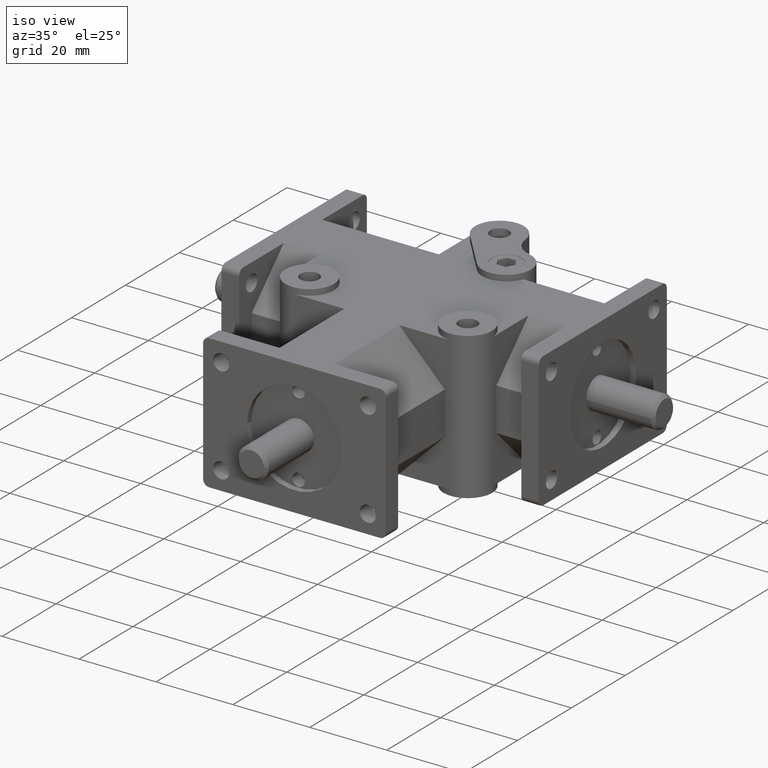
[diagram: clean part render]
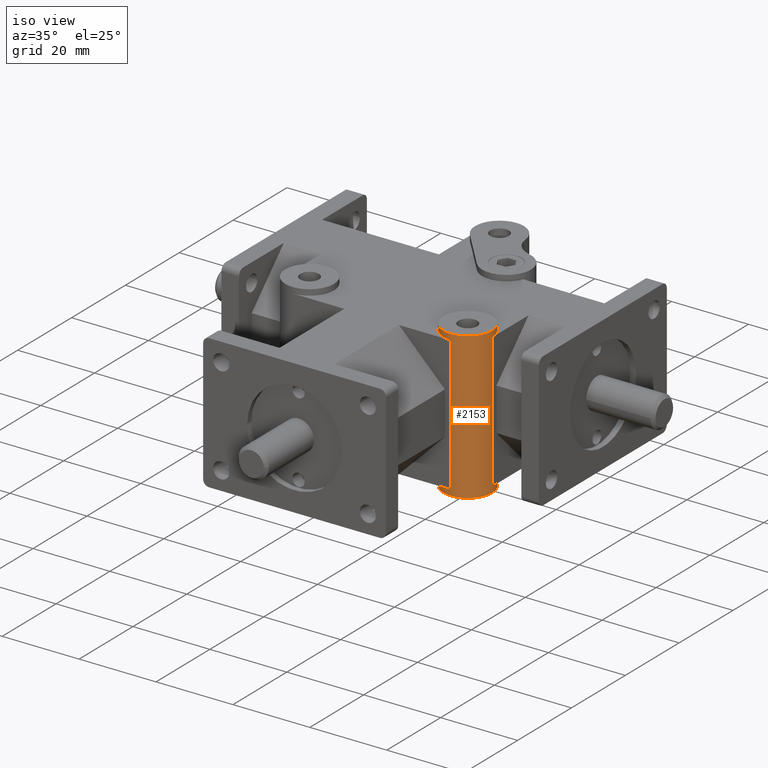
[diagram: same view with one face highlighted and labeled with its STEP entity id]
A machine part, iso view. The second image highlights one B-rep face of the part: STEP entity #2153.
In plain terms, the highlighted cylindrical surface (bore or boss wall) has radius 6.35 mm, axis along (0, 0, 1).
Its self-contained STEP definition (entity closure, byte-faithful):
#215=FACE_OUTER_BOUND('',#365,.T.);
#365=EDGE_LOOP('',(#1837,#1838,#1839,#1840,#1841,#1842,#1843,#1844,#1845,
#1846,#1847,#1848));
#482=CIRCLE('',#2315,6.35);
#483=CIRCLE('',#2316,6.35);
#490=CIRCLE('',#2325,6.35);
#491=CIRCLE('',#2326,6.35);
#509=CIRCLE('',#2380,6.35);
#510=CIRCLE('',#2381,6.35);
#683=LINE('',#3602,#878);
#684=LINE('',#3606,#879);
#685=LINE('',#3608,#880);
#686=LINE('',#3610,#881);
#878=VECTOR('',#2943,1.);
#879=VECTOR('',#2948,6.35);
#880=VECTOR('',#2949,6.35);
#881=VECTOR('',#2952,1.);
#1017=VERTEX_POINT('',#3363);
#1018=VERTEX_POINT('',#3365);
#1019=VERTEX_POINT('',#3367);
#1046=VERTEX_POINT('',#3436);
#1047=VERTEX_POINT('',#3438);
#1048=VERTEX_POINT('',#3440);
#1094=VERTEX_POINT('',#3604);
#1095=VERTEX_POINT('',#3607);
#1243=EDGE_CURVE('',#1017,#1018,#482,.T.);
#1244=EDGE_CURVE('',#1018,#1019,#483,.T.);
#1285=EDGE_CURVE('',#1046,#1047,#490,.T.);
#1286=EDGE_CURVE('',#1047,#1048,#491,.T.);
#1367=EDGE_CURVE('',#1048,#1017,#683,.T.);
#1368=EDGE_CURVE('',#1094,#1094,#509,.T.);
#1369=EDGE_CURVE('',#1094,#1018,#684,.T.);
#1370=EDGE_CURVE('',#1047,#1095,#685,.T.);
#1371=EDGE_CURVE('',#1095,#1095,#510,.T.);
#1372=EDGE_CURVE('',#1046,#1019,#686,.T.);
#1837=ORIENTED_EDGE('',*,*,#1368,.T.);
#1838=ORIENTED_EDGE('',*,*,#1369,.T.);
#1839=ORIENTED_EDGE('',*,*,#1243,.F.);
#1840=ORIENTED_EDGE('',*,*,#1367,.F.);
#1841=ORIENTED_EDGE('',*,*,#1286,.F.);
#1842=ORIENTED_EDGE('',*,*,#1370,.T.);
#1843=ORIENTED_EDGE('',*,*,#1371,.T.);
#1844=ORIENTED_EDGE('',*,*,#1370,.F.);
#1845=ORIENTED_EDGE('',*,*,#1285,.F.);
#1846=ORIENTED_EDGE('',*,*,#1372,.T.);
#1847=ORIENTED_EDGE('',*,*,#1244,.F.);
#1848=ORIENTED_EDGE('',*,*,#1369,.F.);
#2058=CYLINDRICAL_SURFACE('',#2379,6.35);
#2153=ADVANCED_FACE('',(#215),#2058,.T.);
#2315=AXIS2_PLACEMENT_3D('',#3366,#2718,#2719);
#2316=AXIS2_PLACEMENT_3D('',#3368,#2720,#2721);
#2325=AXIS2_PLACEMENT_3D('',#3439,#2772,#2773);
#2326=AXIS2_PLACEMENT_3D('',#3441,#2774,#2775);
#2379=AXIS2_PLACEMENT_3D('',#3603,#2944,#2945);
#2380=AXIS2_PLACEMENT_3D('',#3605,#2946,#2947);
#2381=AXIS2_PLACEMENT_3D('',#3609,#2950,#2951);
#2718=DIRECTION('center_axis',(0.,0.,-1.));
#2719=DIRECTION('ref_axis',(1.,0.,0.));
#2720=DIRECTION('center_axis',(0.,0.,-1.));
#2721=DIRECTION('ref_axis',(1.,0.,0.));
#2772=DIRECTION('center_axis',(0.,0.,1.));
#2773=DIRECTION('ref_axis',(1.,0.,0.));
#2774=DIRECTION('center_axis',(0.,0.,1.));
#2775=DIRECTION('ref_axis',(1.,0.,0.));
#2943=DIRECTION('',(0.,0.,1.));
#2944=DIRECTION('center_axis',(0.,0.,1.));
#2945=DIRECTION('ref_axis',(1.,0.,0.));
#2946=DIRECTION('center_axis',(0.,0.,-1.));
#2947=DIRECTION('ref_axis',(1.,0.,0.));
#2948=DIRECTION('',(0.,0.,-1.));
#2949=DIRECTION('',(0.,0.,-1.));
#2950=DIRECTION('center_axis',(0.,0.,1.));
#2951=DIRECTION('ref_axis',(1.,0.,0.));
#2952=DIRECTION('',(0.,0.,1.));
#3363=CARTESIAN_POINT('',(20.574,28.6385,17.526));
#3365=CARTESIAN_POINT('',(14.224,34.9885,17.526));
#3366=CARTESIAN_POINT('Origin',(20.574,34.9885,17.526));
#3367=CARTESIAN_POINT('',(26.924,34.9885,17.526));
#3368=CARTESIAN_POINT('Origin',(20.574,34.9885,17.526));
#3436=CARTESIAN_POINT('',(26.924,34.9885,-17.526));
#3438=CARTESIAN_POINT('',(14.224,34.9885,-17.526));
#3439=CARTESIAN_POINT('Origin',(20.574,34.9885,-17.526));
#3440=CARTESIAN_POINT('',(20.574,28.6385,-17.526));
#3441=CARTESIAN_POINT('Origin',(20.574,34.9885,-17.526));
#3602=CARTESIAN_POINT('',(20.574,28.6385,0.));
#3603=CARTESIAN_POINT('Origin',(20.574,34.9885,0.));
#3604=CARTESIAN_POINT('',(14.224,34.9885,19.05));
#3605=CARTESIAN_POINT('Origin',(20.574,34.9885,19.05));
#3606=CARTESIAN_POINT('',(14.224,34.9885,0.));
#3607=CARTESIAN_POINT('',(14.224,34.9885,-19.05));
#3608=CARTESIAN_POINT('',(14.224,34.9885,0.));
#3609=CARTESIAN_POINT('Origin',(20.574,34.9885,-19.05));
#3610=CARTESIAN_POINT('',(26.924,34.9885,0.));